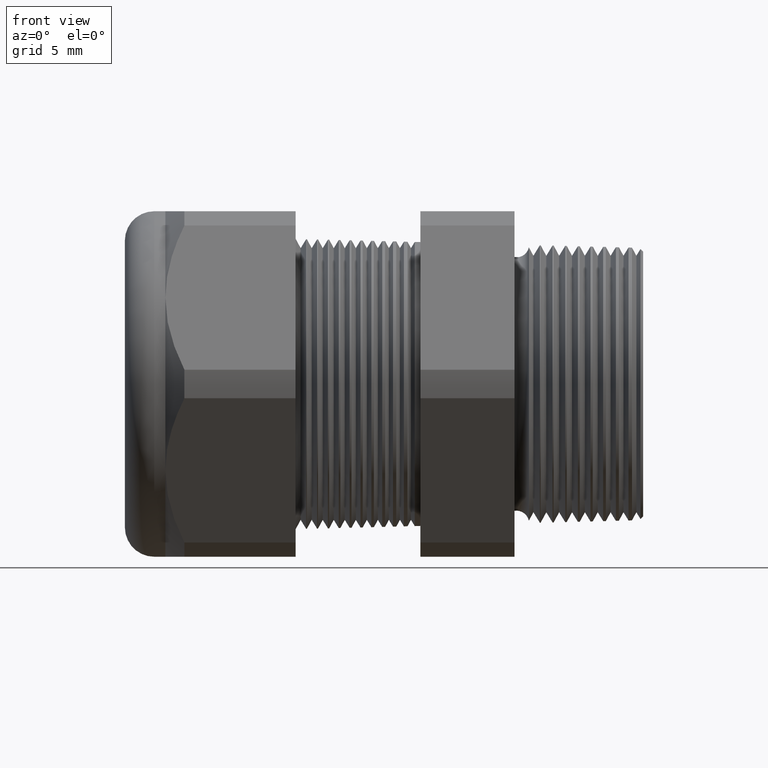
[diagram: clean part render]
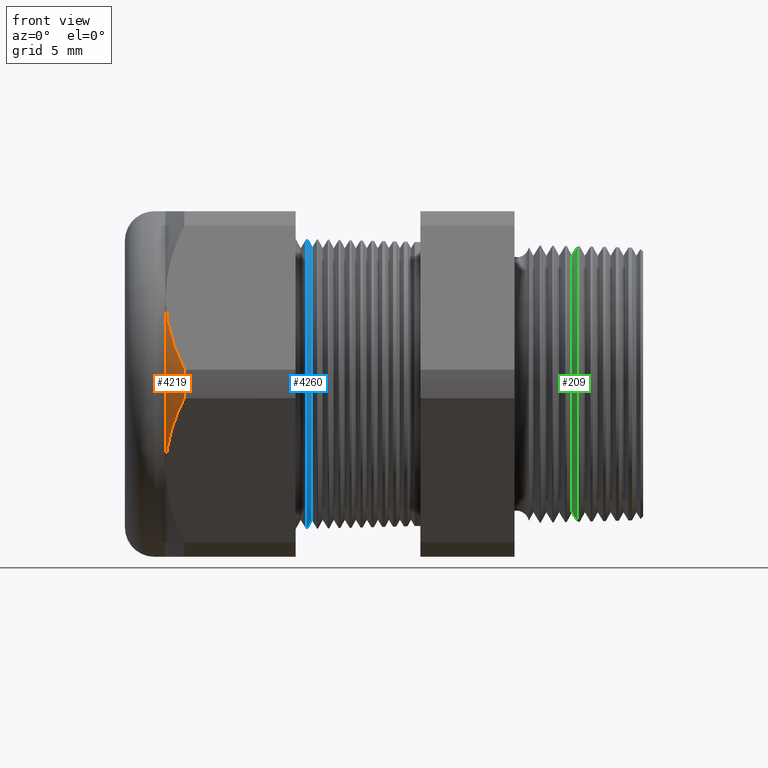
[diagram: same view with three faces highlighted in distinct colors, each labeled with its STEP entity id]
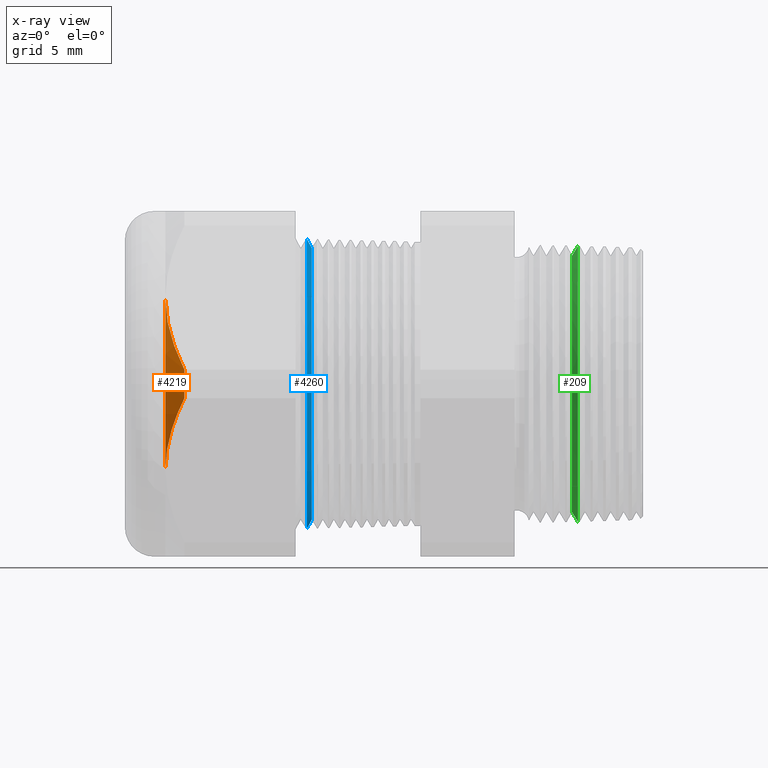
[diagram: x-ray of the same camera — body ghosted, the three highlighted faces saturated]
A machine part, front view with three faces highlighted in distinct colors.
The next image is the same camera in x-ray (body ghosted, the three faces saturated) — at least one of them is partly hidden behind the body in this view.
Their STEP definitions:

[orange] entity #4219 — the highlighted conical surface has half-angle 45 deg.
#333 = VERTEX_POINT ( 'NONE', #985 ) ;
#985 = CARTESIAN_POINT ( 'NONE',  ( -1.208063779527559100, -0.5202473208008777700, 0.03890520787129464500 ) ) ;
#1237 = CARTESIAN_POINT ( 'NONE',  ( -1.259763779527559400, -0.4070319397786862900, 0.2349999999999999600 ) ) ;
#1238 = CARTESIAN_POINT ( 'NONE',  ( -1.208063779527559100, -0.5202473208008777700, -0.03890520787129495000 ) ) ;
#1249 = CARTESIAN_POINT ( 'NONE',  ( -1.259763779527559400, -0.4070319397786861800, -0.2350000000000001300 ) ) ;
#1273 = CARTESIAN_POINT ( 'NONE',  ( -1.259763779527559400, -0.4070319397786861800, -0.2350000000000001300 ) ) ;
#1274 = CARTESIAN_POINT ( 'NONE',  ( -1.259763779527559400, -0.4119326305003307400, -0.2265117546779304700 ) ) ;
#1275 = CARTESIAN_POINT ( 'NONE',  ( -1.259453644849874300, -0.4168781440523186000, -0.2179458739363668000 ) ) ;
#1276 = CARTESIAN_POINT ( 'NONE',  ( -1.258221849142435500, -0.4267040029977489100, -0.2009269870148765500 ) ) ;
#1277 = CARTESIAN_POINT ( 'NONE',  ( -1.257304216752656200, -0.4315793332085023900, -0.1924826673861758100 ) ) ;
#1278 = CARTESIAN_POINT ( 'NONE',  ( -1.253700751481475800, -0.4460993342073095200, -0.1673332879302909800 ) ) ;
#1279 = CARTESIAN_POINT ( 'NONE',  ( -1.250164085422761800, -0.4556379823307484300, -0.1508118647449733200 ) ) ;
#1280 = CARTESIAN_POINT ( 'NONE',  ( -1.236620445010038400, -0.4838883643614172400, -0.1018807677346239400 ) ) ;
#1281 = CARTESIAN_POINT ( 'NONE',  ( -1.223697825203295100, -0.5022367785154768800, -0.07010038218147658700 ) ) ;
#1282 = CARTESIAN_POINT ( 'NONE',  ( -1.208063779527559100, -0.5202473208008777700, -0.03890520787129495000 ) ) ;
#1284 = B_SPLINE_CURVE_WITH_KNOTS ( 'NONE', 3,
 ( #1282, #1281, #1280, #1279, #1278, #1277, #1276, #1275, #1274, #1273 ),
 .UNSPECIFIED., .F., .F.,
 ( 4, 2, 2, 2, 4 ),
 ( 2.483251536678829300E-007, 0.002951677829872990000, 0.004427392582232652300, 0.005165249958412484200, 0.005903107334592316800 ),
 .UNSPECIFIED. ) ;
#1357 = B_SPLINE_CURVE_WITH_KNOTS ( 'NONE', 3,
 ( #1411, #1410, #1409, #1408, #1407, #1406 ),
 .UNSPECIFIED., .F., .F.,
 ( 4, 2, 4 ),
 ( 0.005903107334592319400, 0.008852512982428785800, 0.01180191863026525300 ),
 .UNSPECIFIED. ) ;
#1371 = DIRECTION ( 'NONE',  ( 0.0000000000000000000, 0.0000000000000000000, -1.000000000000000000 ) ) ;
#1372 = DIRECTION ( 'NONE',  ( 1.000000000000000000, 0.0000000000000000000, 0.0000000000000000000 ) ) ;
#1373 = CARTESIAN_POINT ( 'NONE',  ( -1.208063779527559100, 0.0000000000000000000, 0.0000000000000000000 ) ) ;
#1374 = AXIS2_PLACEMENT_3D ( 'NONE', #1373, #1372, #1371 ) ;
#1375 = CIRCLE ( 'NONE', #1374, 0.5217000000000000500 ) ;
#1406 = CARTESIAN_POINT ( 'NONE',  ( -1.208063779527559100, -0.5202473208008777700, 0.03890520787129464500 ) ) ;
#1407 = CARTESIAN_POINT ( 'NONE',  ( -1.223717189021966700, -0.5022144712456754200, 0.07013901950615096500 ) ) ;
#1408 = CARTESIAN_POINT ( 'NONE',  ( -1.236822062588142500, -0.4835762490957483700, 0.1024213672325803200 ) ) ;
#1409 = CARTESIAN_POINT ( 'NONE',  ( -1.254818111347315100, -0.4458197490082083700, 0.1678175437001784300 ) ) ;
#1410 = CARTESIAN_POINT ( 'NONE',  ( -1.259763779527558700, -0.4266212606411438600, 0.2010703009804539800 ) ) ;
#1411 = CARTESIAN_POINT ( 'NONE',  ( -1.259763779527559400, -0.4070319397786862900, 0.2349999999999999600 ) ) ;
#1793 = VERTEX_POINT ( 'NONE', #1249 ) ;
#2259 = DIRECTION ( 'NONE',  ( 0.0000000000000000000, 0.0000000000000000000, 1.000000000000000000 ) ) ;
#2260 = DIRECTION ( 'NONE',  ( 1.000000000000000000, 0.0000000000000000000, 0.0000000000000000000 ) ) ;
#2261 = AXIS2_PLACEMENT_3D ( 'NONE', #2268, #2260, #2259 ) ;
#2263 = CONICAL_SURFACE ( 'NONE', #2261, 0.4699999999999997500, 0.7853981633974501700 ) ;
#2264 = FACE_OUTER_BOUND ( 'NONE', #4220, .T. ) ;
#2268 = CARTESIAN_POINT ( 'NONE',  ( -1.259763779527559400, 0.0000000000000000000, 0.0000000000000000000 ) ) ;
#2572 = CARTESIAN_POINT ( 'NONE',  ( -1.259763779527559400, 0.0000000000000000000, 0.0000000000000000000 ) ) ;
#2632 = DIRECTION ( 'NONE',  ( 0.0000000000000000000, 0.0000000000000000000, -1.000000000000000000 ) ) ;
#2633 = DIRECTION ( 'NONE',  ( 1.000000000000000000, 0.0000000000000000000, 0.0000000000000000000 ) ) ;
#2634 = AXIS2_PLACEMENT_3D ( 'NONE', #2572, #2633, #2632 ) ;
#2635 = CIRCLE ( 'NONE', #2634, 0.4699999999999999200 ) ;
#3648 = VERTEX_POINT ( 'NONE', #1238 ) ;
#3649 = VERTEX_POINT ( 'NONE', #1237 ) ;
#3654 = EDGE_CURVE ( 'NONE', #3648, #1793, #1284, .T. ) ;
#3697 = EDGE_CURVE ( 'NONE', #333, #3648, #1375, .T. ) ;
#3709 = EDGE_CURVE ( 'NONE', #3649, #333, #1357, .T. ) ;
#4149 = ORIENTED_EDGE ( 'NONE', *, *, #3654, .F. ) ;
#4219 = ADVANCED_FACE ( 'NONE', ( #2264 ), #2263, .T. ) ;
#4220 = EDGE_LOOP ( 'NONE', ( #4221, #4222, #4223, #4149 ) ) ;
#4221 = ORIENTED_EDGE ( 'NONE', *, *, #3697, .F. ) ;
#4222 = ORIENTED_EDGE ( 'NONE', *, *, #3709, .F. ) ;
#4223 = ORIENTED_EDGE ( 'NONE', *, *, #4431, .T. ) ;
#4431 = EDGE_CURVE ( 'NONE', #3649, #1793, #2635, .T. ) ;

[blue] entity #4260 — the highlighted conical surface has half-angle 61.5 deg.
#1503 = DIRECTION ( 'NONE',  ( 0.0000000000000000000, 0.0000000000000000000, 1.000000000000000000 ) ) ;
#1504 = DIRECTION ( 'NONE',  ( 1.000000000000000000, 0.0000000000000000000, 0.0000000000000000000 ) ) ;
#1505 = CARTESIAN_POINT ( 'NONE',  ( -0.8750003851684460300, 0.0000000000000000000, 0.0000000000000000000 ) ) ;
#1506 = AXIS2_PLACEMENT_3D ( 'NONE', #1505, #1504, #1503 ) ;
#1507 = CIRCLE ( 'NONE', #1506, 0.3942030920791805800 ) ;
#2235 = DIRECTION ( 'NONE',  ( 0.0000000000000000000, 0.0000000000000000000, -1.000000000000000000 ) ) ;
#2236 = DIRECTION ( 'NONE',  ( 1.000000000000000000, 0.0000000000000000000, 0.0000000000000000000 ) ) ;
#2237 = CARTESIAN_POINT ( 'NONE',  ( -0.8616586839320378200, 0.0000000000000000000, 0.0000000000000000000 ) ) ;
#2238 = AXIS2_PLACEMENT_3D ( 'NONE', #2237, #2236, #2235 ) ;
#2239 = CIRCLE ( 'NONE', #2238, 0.3696307351718083900 ) ;
#2290 = FACE_OUTER_BOUND ( 'NONE', #4185, .T. ) ;
#2344 = DIRECTION ( 'NONE',  ( 0.0000000000000000000, 0.0000000000000000000, 1.000000000000000000 ) ) ;
#2345 = DIRECTION ( 'NONE',  ( -1.000000000000000000, 0.0000000000000000000, 0.0000000000000000000 ) ) ;
#2346 = CARTESIAN_POINT ( 'NONE',  ( -0.8754330708661419700, 0.0000000000000000000, 0.0000000000000000000 ) ) ;
#2347 = AXIS2_PLACEMENT_3D ( 'NONE', #2346, #2345, #2344 ) ;
#2349 = CONICAL_SURFACE ( 'NONE', #2347, 0.3950000000000000200, 1.073377489976495400 ) ;
#2804 = CARTESIAN_POINT ( 'NONE',  ( -0.8750003851684460300, 4.827848099093028400E-017, -0.3942030920791805800 ) ) ;
#2805 = DIRECTION ( 'NONE',  ( -0.4771587602596235600, 1.076240564057384600E-016, -0.8788171126619570600 ) ) ;
#2806 = VECTOR ( 'NONE', #2805, 39.37007874015748900 ) ;
#2807 = CARTESIAN_POINT ( 'NONE',  ( -0.8754330708661419700, 4.837354856632045600E-017, -0.3950000000000000200 ) ) ;
#2808 = LINE ( 'NONE', #2807, #2806 ) ;
#2813 = DIRECTION ( 'NONE',  ( -0.4771587602596235600, 0.0000000000000000000, 0.8788171126619570600 ) ) ;
#2814 = VECTOR ( 'NONE', #2813, 39.37007874015748900 ) ;
#2815 = CARTESIAN_POINT ( 'NONE',  ( -0.8754330708661419700, 0.0000000000000000000, 0.3950000000000000200 ) ) ;
#2816 = LINE ( 'NONE', #2815, #2814 ) ;
#2823 = CARTESIAN_POINT ( 'NONE',  ( -0.8750003851684460300, 0.0000000000000000000, 0.3942030920791805800 ) ) ;
#2969 = CARTESIAN_POINT ( 'NONE',  ( -0.8616586839320378200, 4.677133258116980000E-017, -0.3696307351718083900 ) ) ;
#2981 = CARTESIAN_POINT ( 'NONE',  ( -0.8616586839320378200, 0.0000000000000000000, 0.3696307351718083900 ) ) ;
#3750 = EDGE_CURVE ( 'NONE', #4542, #4549, #1507, .T. ) ;
#4185 = EDGE_LOOP ( 'NONE', ( #4186, #4187, #4189, #4190 ) ) ;
#4186 = ORIENTED_EDGE ( 'NONE', *, *, #4548, .F. ) ;
#4187 = ORIENTED_EDGE ( 'NONE', *, *, #4188, .F. ) ;
#4188 = EDGE_CURVE ( 'NONE', #4629, #4634, #2239, .T. ) ;
#4189 = ORIENTED_EDGE ( 'NONE', *, *, #4546, .T. ) ;
#4190 = ORIENTED_EDGE ( 'NONE', *, *, #3750, .T. ) ;
#4260 = ADVANCED_FACE ( 'NONE', ( #2290 ), #2349, .T. ) ;
#4542 = VERTEX_POINT ( 'NONE', #2823 ) ;
#4546 = EDGE_CURVE ( 'NONE', #4629, #4542, #2816, .T. ) ;
#4548 = EDGE_CURVE ( 'NONE', #4634, #4549, #2808, .T. ) ;
#4549 = VERTEX_POINT ( 'NONE', #2804 ) ;
#4629 = VERTEX_POINT ( 'NONE', #2981 ) ;
#4634 = VERTEX_POINT ( 'NONE', #2969 ) ;

[green] entity #209 — the highlighted conical surface has half-angle 58.5 deg.
#209 = ADVANCED_FACE ( 'NONE', ( #835 ), #834, .T. ) ;
#210 = EDGE_LOOP ( 'NONE', ( #211, #212, #213, #214 ) ) ;
#211 = ORIENTED_EDGE ( 'NONE', *, *, #3994, .F. ) ;
#212 = ORIENTED_EDGE ( 'NONE', *, *, #229, .T. ) ;
#213 = ORIENTED_EDGE ( 'NONE', *, *, #4741, .T. ) ;
#214 = ORIENTED_EDGE ( 'NONE', *, *, #3793, .T. ) ;
#229 = EDGE_CURVE ( 'NONE', #4810, #4821, #880, .T. ) ;
#829 = DIRECTION ( 'NONE',  ( 0.0000000000000000000, 0.0000000000000000000, -1.000000000000000000 ) ) ;
#830 = DIRECTION ( 'NONE',  ( 1.000000000000000000, 0.0000000000000000000, 0.0000000000000000000 ) ) ;
#831 = CARTESIAN_POINT ( 'NONE',  ( -0.1534707356790752100, 0.0000000000000000000, 0.0000000000000000000 ) ) ;
#832 = AXIS2_PLACEMENT_3D ( 'NONE', #831, #830, #829 ) ;
#834 = CONICAL_SURFACE ( 'NONE', #832, 0.3489649185127733400, 1.021017612416698700 ) ;
#835 = FACE_OUTER_BOUND ( 'NONE', #210, .T. ) ;
#872 = DIRECTION ( 'NONE',  ( 0.0000000000000000000, 0.0000000000000000000, -1.000000000000000000 ) ) ;
#873 = DIRECTION ( 'NONE',  ( 1.000000000000000000, 0.0000000000000000000, 0.0000000000000000000 ) ) ;
#874 = CARTESIAN_POINT ( 'NONE',  ( -0.1534707356790752100, 0.0000000000000000000, 0.0000000000000000000 ) ) ;
#875 = AXIS2_PLACEMENT_3D ( 'NONE', #874, #873, #872 ) ;
#880 = CIRCLE ( 'NONE', #875, 0.3489649185127733400 ) ;
#1598 = DIRECTION ( 'NONE',  ( 0.0000000000000000000, 0.0000000000000000000, -1.000000000000000000 ) ) ;
#1599 = DIRECTION ( 'NONE',  ( -1.000000000000000000, 0.0000000000000000000, 0.0000000000000000000 ) ) ;
#1600 = CARTESIAN_POINT ( 'NONE',  ( -0.1375819195166211300, 0.0000000000000000000, 0.0000000000000000000 ) ) ;
#1601 = AXIS2_PLACEMENT_3D ( 'NONE', #1600, #1599, #1598 ) ;
#1602 = CIRCLE ( 'NONE', #1601, 0.3748931099739570800 ) ;
#1941 = DIRECTION ( 'NONE',  ( 0.5224985647159352500, 1.044183048100722500E-016, 0.8526401643541005000 ) ) ;
#1942 = VECTOR ( 'NONE', #1941, 39.37007874015748900 ) ;
#1943 = CARTESIAN_POINT ( 'NONE',  ( -0.1534707356790752100, 4.273587704713848000E-017, 0.3489649185127733400 ) ) ;
#1944 = LINE ( 'NONE', #1943, #1942 ) ;
#1983 = CARTESIAN_POINT ( 'NONE',  ( -0.1375819195166211300, 4.591116471520031100E-017, -0.3748931099739570800 ) ) ;
#1989 = CARTESIAN_POINT ( 'NONE',  ( -0.1375819195166211300, 0.0000000000000000000, 0.3748931099739570800 ) ) ;
#3199 = DIRECTION ( 'NONE',  ( 0.5224985647159352500, 0.0000000000000000000, -0.8526401643541005000 ) ) ;
#3200 = VECTOR ( 'NONE', #3199, 39.37007874015748900 ) ;
#3201 = CARTESIAN_POINT ( 'NONE',  ( -0.1534707356790752100, 0.0000000000000000000, -0.3489649185127733400 ) ) ;
#3207 = LINE ( 'NONE', #3201, #3200 ) ;
#3330 = CARTESIAN_POINT ( 'NONE',  ( -0.1534707356790752100, 0.0000000000000000000, 0.3489649185127733400 ) ) ;
#3364 = CARTESIAN_POINT ( 'NONE',  ( -0.1534707356790752100, 4.437226321388159300E-017, -0.3489649185127733400 ) ) ;
#3793 = EDGE_CURVE ( 'NONE', #4009, #4006, #1602, .T. ) ;
#3994 = EDGE_CURVE ( 'NONE', #4810, #4006, #1944, .T. ) ;
#4006 = VERTEX_POINT ( 'NONE', #1989 ) ;
#4009 = VERTEX_POINT ( 'NONE', #1983 ) ;
#4741 = EDGE_CURVE ( 'NONE', #4821, #4009, #3207, .T. ) ;
#4810 = VERTEX_POINT ( 'NONE', #3330 ) ;
#4821 = VERTEX_POINT ( 'NONE', #3364 ) ;